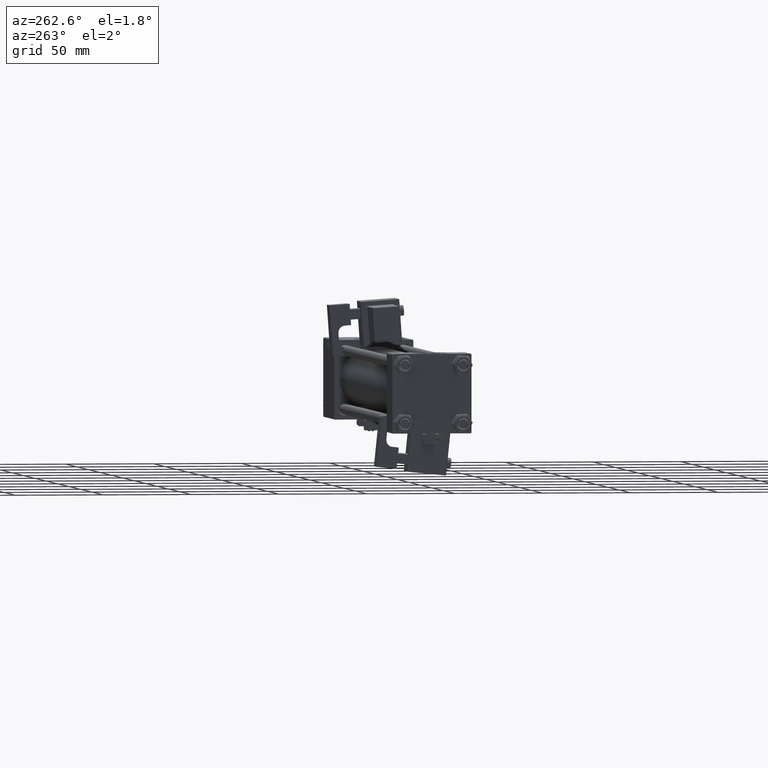
[diagram: clean part render]
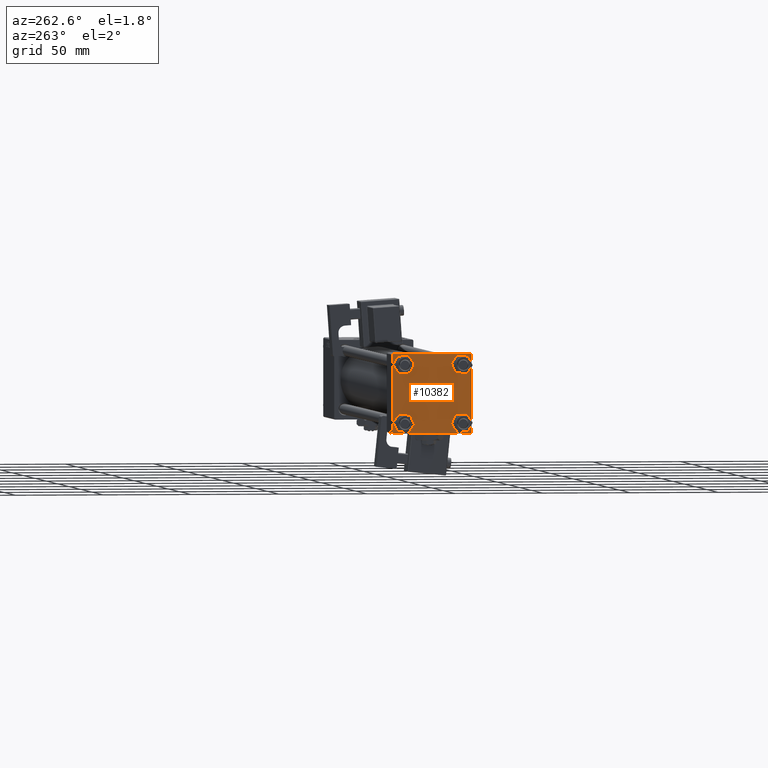
[diagram: same view with one face highlighted and labeled with its STEP entity id]
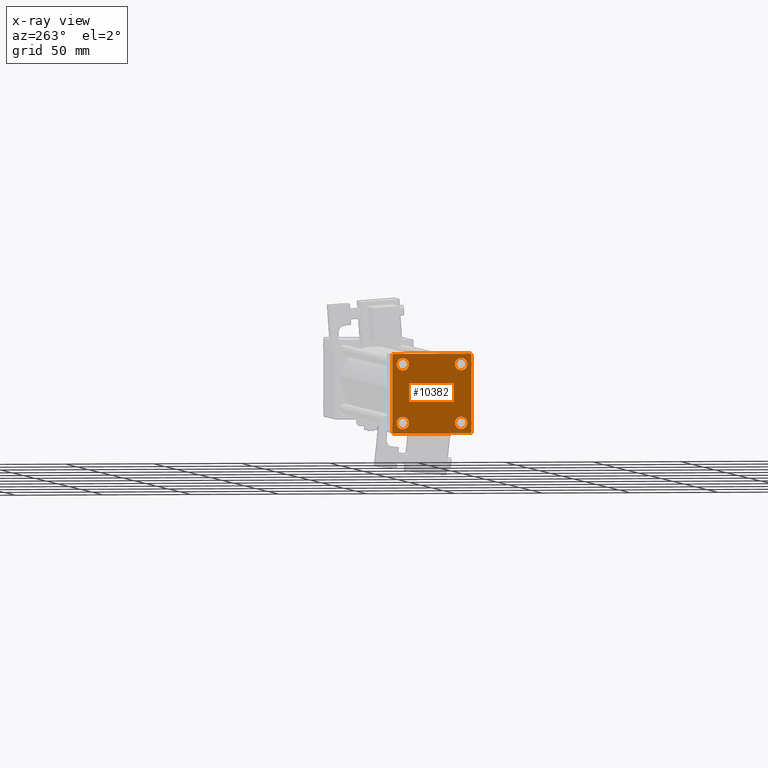
[diagram: x-ray of the same camera — body ghosted, the highlighted face saturated]
A machine part, auxiliary view. The second image highlights one B-rep face of the part: STEP entity #10382.
The next image is the same camera in x-ray: the body ghosted, the highlighted face saturated — about 0% of this face is hidden behind the body in this view.
In plain terms, the highlighted planar face has unit normal (-1, 0, 0).
Its self-contained STEP definition (entity closure, byte-faithful):
#183 = PLANE ( 'NONE',  #43690 ) ;
#1434 = VECTOR ( 'NONE', #18157, 1000.000000000000000 ) ;
#1680 = CARTESIAN_POINT ( 'NONE',  ( 0.000000000000000000, 16.59999999999999787, 16.60000000000000497 ) ) ;
#2336 = CARTESIAN_POINT ( 'NONE',  ( 0.000000000000000000, -21.99999999999997868, 22.50000000000000000 ) ) ;
#3021 = CARTESIAN_POINT ( 'NONE',  ( 0.000000000000000000, 22.50000000000000000, -21.99999999999996803 ) ) ;
#3220 = CARTESIAN_POINT ( 'NONE',  ( 0.000000000000000000, 16.59999999999999787, -16.60000000000000497 ) ) ;
#3662 = CARTESIAN_POINT ( 'NONE',  ( 0.000000000000000000, 16.59999999999999787, 20.10000000000000142 ) ) ;
#3765 = DIRECTION ( 'NONE',  ( 1.000000000000000000, -0.000000000000000000, 0.000000000000000000 ) ) ;
#3900 = ORIENTED_EDGE ( 'NONE', *, *, #16846, .T. ) ;
#4209 = ORIENTED_EDGE ( 'NONE', *, *, #16840, .T. ) ;
#4793 = CARTESIAN_POINT ( 'NONE',  ( 0.000000000000000000, -22.50000000000000000, 22.00000000000000000 ) ) ;
#5378 = LINE ( 'NONE', #54495, #51572 ) ;
#5723 = CARTESIAN_POINT ( 'NONE',  ( 0.000000000000000000, -22.25000000000014566, -22.24999999999984013 ) ) ;
#6242 = ORIENTED_EDGE ( 'NONE', *, *, #58916, .T. ) ;
#6327 = DIRECTION ( 'NONE',  ( 0.000000000000000000, -1.000000000000000000, -2.312964634635742957E-16 ) ) ;
#8213 = DIRECTION ( 'NONE',  ( -0.000000000000000000, -0.7071067811865426878, -0.7071067811865524577 ) ) ;
#8345 = ORIENTED_EDGE ( 'NONE', *, *, #52702, .F. ) ;
#9144 = LINE ( 'NONE', #23687, #9784 ) ;
#9641 = EDGE_CURVE ( 'NONE', #15261, #34990, #15366, .T. ) ;
#9784 = VECTOR ( 'NONE', #18207, 1000.000000000000114 ) ;
#9866 = EDGE_CURVE ( 'NONE', #24880, #61381, #57976, .T. ) ;
#10382 = ADVANCED_FACE ( 'NONE', ( #28644, #13771, #14727, #44451, #48342 ), #183, .T. ) ;
#11699 = EDGE_CURVE ( 'NONE', #24880, #35127, #52421, .T. ) ;
#11850 = CIRCLE ( 'NONE', #47958, 3.499999999999996003 ) ;
#11927 = EDGE_CURVE ( 'NONE', #28983, #19394, #60260, .T. ) ;
#12354 = CARTESIAN_POINT ( 'NONE',  ( 0.000000000000000000, -16.59999999999999076, -16.60000000000000853 ) ) ;
#12809 = LINE ( 'NONE', #32846, #46746 ) ;
#13040 = CIRCLE ( 'NONE', #29560, 3.499999999999996003 ) ;
#13146 = ORIENTED_EDGE ( 'NONE', *, *, #25788, .T. ) ;
#13693 = CARTESIAN_POINT ( 'NONE',  ( -0.000000000000000000, -22.24999999999984013, 22.25000000000015277 ) ) ;
#13771 = FACE_BOUND ( 'NONE', #44026, .T. ) ;
#14727 = FACE_BOUND ( 'NONE', #26799, .T. ) ;
#15261 = VERTEX_POINT ( 'NONE', #58933 ) ;
#15366 = LINE ( 'NONE', #35400, #59145 ) ;
#16840 = EDGE_CURVE ( 'NONE', #19394, #28983, #28284, .T. ) ;
#16846 = EDGE_CURVE ( 'NONE', #61744, #61467, #24155, .T. ) ;
#16948 = AXIS2_PLACEMENT_3D ( 'NONE', #19263, #3765, #28340 ) ;
#17065 = CARTESIAN_POINT ( 'NONE',  ( 0.000000000000000000, -21.99999999999997158, -22.50000000000000711 ) ) ;
#17601 = LINE ( 'NONE', #42782, #24245 ) ;
#18025 = ORIENTED_EDGE ( 'NONE', *, *, #18909, .T. ) ;
#18040 = EDGE_LOOP ( 'NONE', ( #13146, #62116 ) ) ;
#18157 = DIRECTION ( 'NONE',  ( 0.000000000000000000, 0.000000000000000000, -1.000000000000000000 ) ) ;
#18207 = DIRECTION ( 'NONE',  ( 0.000000000000000000, 0.7071067811865474617, -0.7071067811865474617 ) ) ;
#18292 = DIRECTION ( 'NONE',  ( 0.000000000000000000, -1.000000000000000000, -7.709882115452476934E-17 ) ) ;
#18312 = DIRECTION ( 'NONE',  ( 1.000000000000000000, -0.000000000000000000, 0.000000000000000000 ) ) ;
#18856 = VERTEX_POINT ( 'NONE', #33099 ) ;
#18909 = EDGE_CURVE ( 'NONE', #34990, #43067, #17601, .T. ) ;
#19263 = CARTESIAN_POINT ( 'NONE',  ( 0.000000000000000000, 16.59999999999999787, -16.60000000000000497 ) ) ;
#19279 = EDGE_CURVE ( 'NONE', #61467, #61744, #11850, .T. ) ;
#19394 = VERTEX_POINT ( 'NONE', #39447 ) ;
#19907 = DIRECTION ( 'NONE',  ( 0.000000000000000000, 0.000000000000000000, 1.000000000000000000 ) ) ;
#22664 = EDGE_CURVE ( 'NONE', #56816, #48406, #13040, .T. ) ;
#22897 = DIRECTION ( 'NONE',  ( 1.000000000000000000, -0.000000000000000000, 0.000000000000000000 ) ) ;
#22933 = DIRECTION ( 'NONE',  ( 0.000000000000000000, 0.000000000000000000, 1.000000000000000000 ) ) ;
#23687 = CARTESIAN_POINT ( 'NONE',  ( 0.000000000000000000, 22.24999999999999645, 22.24999999999999645 ) ) ;
#24155 = CIRCLE ( 'NONE', #42749, 3.499999999999996003 ) ;
#24245 = VECTOR ( 'NONE', #8213, 1000.000000000000000 ) ;
#24880 = VERTEX_POINT ( 'NONE', #4793 ) ;
#24986 = CIRCLE ( 'NONE', #61136, 3.499999999999996003 ) ;
#25444 = DIRECTION ( 'NONE',  ( 0.000000000000000000, -0.7071067811865426878, 0.7071067811865524577 ) ) ;
#25788 = EDGE_CURVE ( 'NONE', #18856, #27912, #51369, .T. ) ;
#26252 = AXIS2_PLACEMENT_3D ( 'NONE', #3220, #43601, #22933 ) ;
#26799 = EDGE_LOOP ( 'NONE', ( #43258, #4209 ) ) ;
#27912 = VERTEX_POINT ( 'NONE', #58952 ) ;
#28284 = CIRCLE ( 'NONE', #26252, 3.499999999999996003 ) ;
#28340 = DIRECTION ( 'NONE',  ( 0.000000000000000000, 0.000000000000000000, 1.000000000000000000 ) ) ;
#28644 = FACE_BOUND ( 'NONE', #18040, .T. ) ;
#28812 = CARTESIAN_POINT ( 'NONE',  ( 0.000000000000000000, -22.50000000000000000, 22.50000000000000000 ) ) ;
#28983 = VERTEX_POINT ( 'NONE', #54097 ) ;
#29560 = AXIS2_PLACEMENT_3D ( 'NONE', #1680, #22897, #45626 ) ;
#29943 = ORIENTED_EDGE ( 'NONE', *, *, #11699, .F. ) ;
#32234 = EDGE_LOOP ( 'NONE', ( #50709, #18025, #61631, #53193, #29943, #41575, #8345, #6242 ) ) ;
#32300 = EDGE_LOOP ( 'NONE', ( #41784, #46099 ) ) ;
#32700 = DIRECTION ( 'NONE',  ( 1.000000000000000000, -0.000000000000000000, 0.000000000000000000 ) ) ;
#32846 = CARTESIAN_POINT ( 'NONE',  ( 0.000000000000000000, 22.50000000000000000, 22.50000000000000355 ) ) ;
#32962 = DIRECTION ( 'NONE',  ( 0.000000000000000000, 0.000000000000000000, 1.000000000000000000 ) ) ;
#33099 = CARTESIAN_POINT ( 'NONE',  ( 0.000000000000000000, -16.59999999999999076, 20.10000000000000853 ) ) ;
#33181 = CARTESIAN_POINT ( 'NONE',  ( 0.000000000000000000, -16.59999999999999076, 16.60000000000000853 ) ) ;
#34441 = CARTESIAN_POINT ( 'NONE',  ( 0.000000000000000000, 0.000000000000000000, 0.000000000000000000 ) ) ;
#34990 = VERTEX_POINT ( 'NONE', #3021 ) ;
#35076 = DIRECTION ( 'NONE',  ( 0.000000000000000000, 0.000000000000000000, -1.000000000000000000 ) ) ;
#35127 = VERTEX_POINT ( 'NONE', #58897 ) ;
#35400 = CARTESIAN_POINT ( 'NONE',  ( 0.000000000000000000, 22.50000000000000000, 22.50000000000000355 ) ) ;
#35469 = LINE ( 'NONE', #5723, #36043 ) ;
#36043 = VECTOR ( 'NONE', #25444, 1000.000000000000000 ) ;
#38032 = DIRECTION ( 'NONE',  ( 0.000000000000000000, 0.000000000000000000, 1.000000000000000000 ) ) ;
#39084 = CARTESIAN_POINT ( 'NONE',  ( 0.000000000000000000, 16.59999999999999787, 13.10000000000000675 ) ) ;
#39447 = CARTESIAN_POINT ( 'NONE',  ( 0.000000000000000000, 16.59999999999999787, -20.10000000000000142 ) ) ;
#39708 = EDGE_CURVE ( 'NONE', #62863, #35127, #35469, .T. ) ;
#41575 = ORIENTED_EDGE ( 'NONE', *, *, #9866, .T. ) ;
#41762 = EDGE_CURVE ( 'NONE', #43067, #62863, #5378, .T. ) ;
#41784 = ORIENTED_EDGE ( 'NONE', *, *, #22664, .T. ) ;
#42749 = AXIS2_PLACEMENT_3D ( 'NONE', #63008, #58468, #32962 ) ;
#42782 = CARTESIAN_POINT ( 'NONE',  ( 0.000000000000000000, 22.25000000000014566, -22.24999999999984013 ) ) ;
#43067 = VERTEX_POINT ( 'NONE', #57314 ) ;
#43258 = ORIENTED_EDGE ( 'NONE', *, *, #11927, .T. ) ;
#43601 = DIRECTION ( 'NONE',  ( 1.000000000000000000, -0.000000000000000000, 0.000000000000000000 ) ) ;
#43690 = AXIS2_PLACEMENT_3D ( 'NONE', #34441, #59329, #54138 ) ;
#44026 = EDGE_LOOP ( 'NONE', ( #3900, #50123 ) ) ;
#44451 = FACE_BOUND ( 'NONE', #32300, .T. ) ;
#44616 = CARTESIAN_POINT ( 'NONE',  ( 0.000000000000000000, -16.59999999999999076, -20.10000000000000497 ) ) ;
#44771 = CIRCLE ( 'NONE', #51969, 3.499999999999996003 ) ;
#45176 = VERTEX_POINT ( 'NONE', #58635 ) ;
#45178 = AXIS2_PLACEMENT_3D ( 'NONE', #33181, #18312, #38032 ) ;
#45626 = DIRECTION ( 'NONE',  ( 0.000000000000000000, 0.000000000000000000, 1.000000000000000000 ) ) ;
#46099 = ORIENTED_EDGE ( 'NONE', *, *, #54741, .T. ) ;
#46746 = VECTOR ( 'NONE', #18292, 1000.000000000000000 ) ;
#47958 = AXIS2_PLACEMENT_3D ( 'NONE', #12354, #32700, #62126 ) ;
#48342 = FACE_OUTER_BOUND ( 'NONE', #32234, .T. ) ;
#48406 = VERTEX_POINT ( 'NONE', #39084 ) ;
#50123 = ORIENTED_EDGE ( 'NONE', *, *, #19279, .T. ) ;
#50709 = ORIENTED_EDGE ( 'NONE', *, *, #9641, .T. ) ;
#51155 = EDGE_CURVE ( 'NONE', #27912, #18856, #24986, .T. ) ;
#51369 = CIRCLE ( 'NONE', #45178, 3.499999999999996003 ) ;
#51572 = VECTOR ( 'NONE', #6327, 1000.000000000000000 ) ;
#51969 = AXIS2_PLACEMENT_3D ( 'NONE', #59019, #58383, #19907 ) ;
#52421 = LINE ( 'NONE', #28812, #1434 ) ;
#52702 = EDGE_CURVE ( 'NONE', #45176, #61381, #12809, .T. ) ;
#53193 = ORIENTED_EDGE ( 'NONE', *, *, #39708, .T. ) ;
#53956 = VECTOR ( 'NONE', #63142, 999.9999999999998863 ) ;
#54097 = CARTESIAN_POINT ( 'NONE',  ( 0.000000000000000000, 16.59999999999999787, -13.10000000000000675 ) ) ;
#54138 = DIRECTION ( 'NONE',  ( -0.000000000000000000, 0.000000000000000000, 1.000000000000000000 ) ) ;
#54495 = CARTESIAN_POINT ( 'NONE',  ( 0.000000000000000000, 22.50000000000000000, -22.49999999999999645 ) ) ;
#54741 = EDGE_CURVE ( 'NONE', #48406, #56816, #44771, .T. ) ;
#54868 = DIRECTION ( 'NONE',  ( 0.000000000000000000, 0.000000000000000000, 1.000000000000000000 ) ) ;
#55121 = CARTESIAN_POINT ( 'NONE',  ( 0.000000000000000000, -16.59999999999999076, -13.10000000000001030 ) ) ;
#56816 = VERTEX_POINT ( 'NONE', #3662 ) ;
#57314 = CARTESIAN_POINT ( 'NONE',  ( 0.000000000000000000, 21.99999999999999289, -22.49999999999999645 ) ) ;
#57976 = LINE ( 'NONE', #13693, #53956 ) ;
#58383 = DIRECTION ( 'NONE',  ( 1.000000000000000000, -0.000000000000000000, 0.000000000000000000 ) ) ;
#58454 = CARTESIAN_POINT ( 'NONE',  ( 0.000000000000000000, -16.59999999999999076, 16.60000000000000853 ) ) ;
#58468 = DIRECTION ( 'NONE',  ( 1.000000000000000000, -0.000000000000000000, 0.000000000000000000 ) ) ;
#58635 = CARTESIAN_POINT ( 'NONE',  ( 0.000000000000000000, 21.99999999999999289, 22.50000000000000355 ) ) ;
#58897 = CARTESIAN_POINT ( 'NONE',  ( 0.000000000000000000, -22.50000000000000000, -21.99999999999997158 ) ) ;
#58916 = EDGE_CURVE ( 'NONE', #45176, #15261, #9144, .T. ) ;
#58933 = CARTESIAN_POINT ( 'NONE',  ( 0.000000000000000000, 22.50000000000000000, 21.99999999999999645 ) ) ;
#58952 = CARTESIAN_POINT ( 'NONE',  ( 0.000000000000000000, -16.59999999999999076, 13.10000000000001030 ) ) ;
#59019 = CARTESIAN_POINT ( 'NONE',  ( 0.000000000000000000, 16.59999999999999787, 16.60000000000000497 ) ) ;
#59145 = VECTOR ( 'NONE', #35076, 1000.000000000000000 ) ;
#59329 = DIRECTION ( 'NONE',  ( -1.000000000000000000, 0.000000000000000000, -0.000000000000000000 ) ) ;
#59736 = DIRECTION ( 'NONE',  ( 1.000000000000000000, -0.000000000000000000, 0.000000000000000000 ) ) ;
#60260 = CIRCLE ( 'NONE', #16948, 3.499999999999996003 ) ;
#61136 = AXIS2_PLACEMENT_3D ( 'NONE', #58454, #59736, #54868 ) ;
#61381 = VERTEX_POINT ( 'NONE', #2336 ) ;
#61467 = VERTEX_POINT ( 'NONE', #44616 ) ;
#61631 = ORIENTED_EDGE ( 'NONE', *, *, #41762, .T. ) ;
#61744 = VERTEX_POINT ( 'NONE', #55121 ) ;
#62116 = ORIENTED_EDGE ( 'NONE', *, *, #51155, .T. ) ;
#62126 = DIRECTION ( 'NONE',  ( 0.000000000000000000, 0.000000000000000000, 1.000000000000000000 ) ) ;
#62863 = VERTEX_POINT ( 'NONE', #17065 ) ;
#63008 = CARTESIAN_POINT ( 'NONE',  ( 0.000000000000000000, -16.59999999999999076, -16.60000000000000853 ) ) ;
#63142 = DIRECTION ( 'NONE',  ( -0.000000000000000000, 0.7071067811865525687, 0.7071067811865425767 ) ) ;